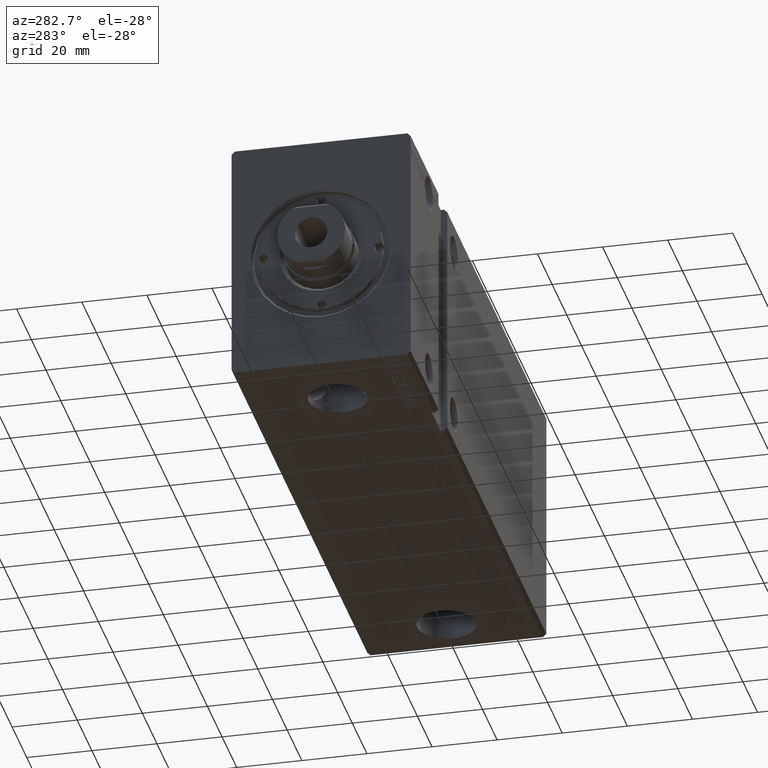
[diagram: clean part render]
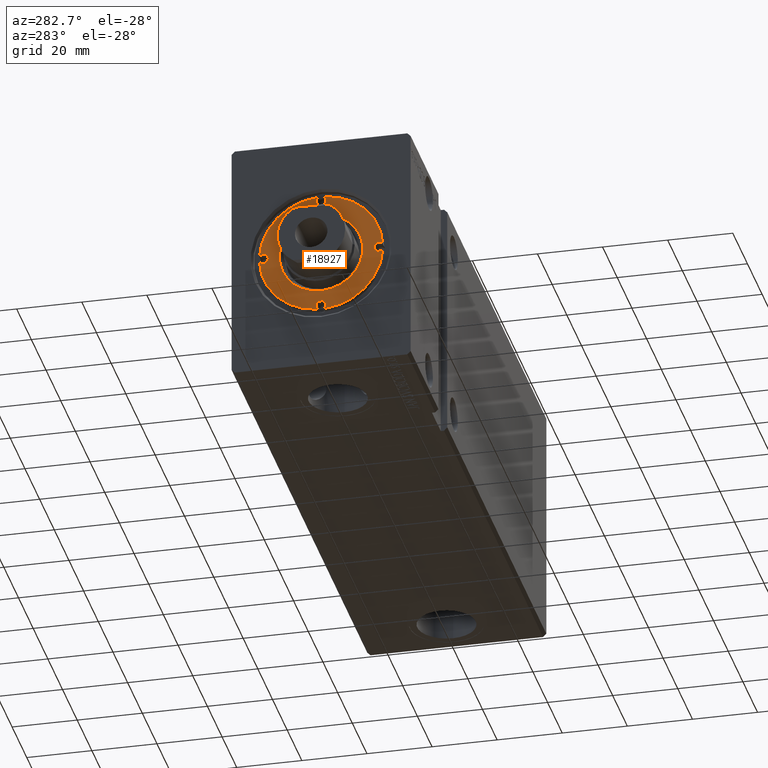
[diagram: same view with one face highlighted and labeled with its STEP entity id]
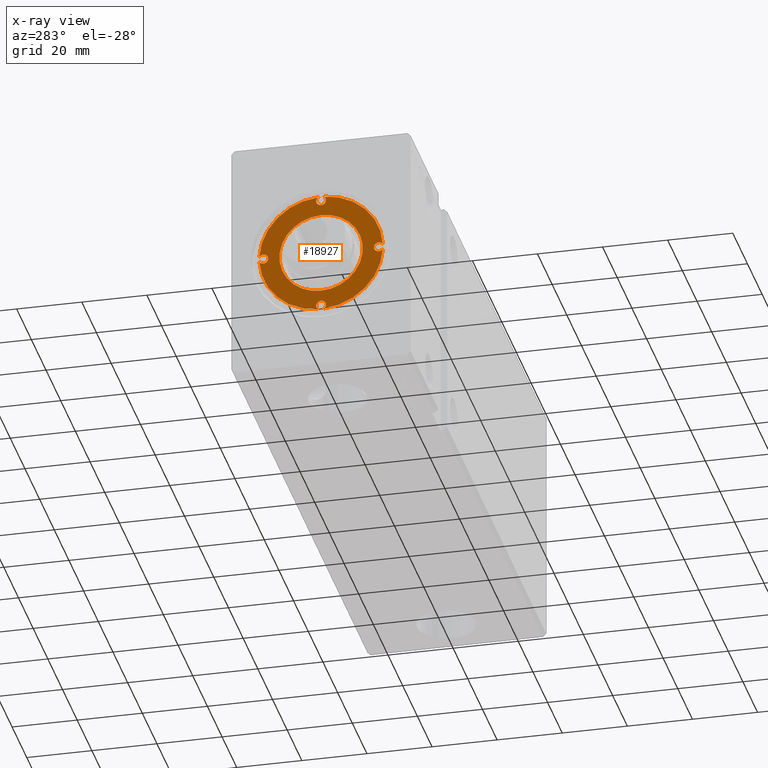
[diagram: x-ray of the same camera — body ghosted, the highlighted face saturated]
A machine part, auxiliary view. The second image highlights one B-rep face of the part: STEP entity #18927.
The next image is the same camera in x-ray: the body ghosted, the highlighted face saturated — about 0% of this face is hidden behind the body in this view.
In plain terms, the highlighted planar face has unit normal (-1, 0, 0).
Its self-contained STEP definition (entity closure, byte-faithful):
#139 = CARTESIAN_POINT ( 'NONE',  ( 0.000000000000000000, 0.000000000000000000, 11.79999999999999893 ) ) ;
#310 = DIRECTION ( 'NONE',  ( -0.000000000000000000, -0.000000000000000000, 1.000000000000000000 ) ) ;
#656 = VERTEX_POINT ( 'NONE', #29098 ) ;
#686 = AXIS2_PLACEMENT_3D ( 'NONE', #1512, #8278, #20448 ) ;
#737 = CARTESIAN_POINT ( 'NONE',  ( -12.79999999999997407, 1.567547902908609029E-15, 11.79999999999999893 ) ) ;
#1171 = DIRECTION ( 'NONE',  ( 1.000000000000000000, 0.000000000000000000, 0.000000000000000000 ) ) ;
#1462 = CARTESIAN_POINT ( 'NONE',  ( 12.79999999999997407, 0.000000000000000000, 11.79999999999999893 ) ) ;
#1512 = CARTESIAN_POINT ( 'NONE',  ( 0.000000000000000000, -17.75000000000000000, 11.79999999999999893 ) ) ;
#1538 = DIRECTION ( 'NONE',  ( -0.000000000000000000, -0.000000000000000000, 1.000000000000000000 ) ) ;
#1889 = CIRCLE ( 'NONE', #12114, 19.00000000000000000 ) ;
#2023 = CIRCLE ( 'NONE', #24326, 1.499999999999996891 ) ;
#2183 = EDGE_CURVE ( 'NONE', #5565, #26791, #22205, .T. ) ;
#2620 = CARTESIAN_POINT ( 'NONE',  ( 0.8576365450261712597, 18.98063380281688950, 11.79999999999999893 ) ) ;
#2948 = CARTESIAN_POINT ( 'NONE',  ( 1.499999999999996891, 17.75000000000000000, 11.79999999999999893 ) ) ;
#3190 = AXIS2_PLACEMENT_3D ( 'NONE', #22474, #27878, #37063 ) ;
#3583 = EDGE_CURVE ( 'NONE', #19759, #17506, #31202, .T. ) ;
#3900 = CARTESIAN_POINT ( 'NONE',  ( 18.98063380281688950, 0.8576365450261742573, 11.79999999999999893 ) ) ;
#3997 = AXIS2_PLACEMENT_3D ( 'NONE', #19100, #1538, #25509 ) ;
#5565 = VERTEX_POINT ( 'NONE', #35166 ) ;
#5742 = EDGE_LOOP ( 'NONE', ( #16484, #35174 ) ) ;
#7233 = VERTEX_POINT ( 'NONE', #17666 ) ;
#7633 = AXIS2_PLACEMENT_3D ( 'NONE', #10937, #23124, #11531 ) ;
#7646 = EDGE_CURVE ( 'NONE', #13435, #13924, #20393, .T. ) ;
#7686 = CIRCLE ( 'NONE', #21694, 19.00000000000000000 ) ;
#7791 = EDGE_CURVE ( 'NONE', #31074, #29948, #26826, .T. ) ;
#7796 = ORIENTED_EDGE ( 'NONE', *, *, #27765, .T. ) ;
#7840 = AXIS2_PLACEMENT_3D ( 'NONE', #23313, #22908, #13725 ) ;
#7844 = AXIS2_PLACEMENT_3D ( 'NONE', #26734, #29739, #38543 ) ;
#8071 = CIRCLE ( 'NONE', #15714, 1.499999999999996891 ) ;
#8278 = DIRECTION ( 'NONE',  ( -0.000000000000000000, -0.000000000000000000, 1.000000000000000000 ) ) ;
#8471 = DIRECTION ( 'NONE',  ( -0.000000000000000000, -0.000000000000000000, 1.000000000000000000 ) ) ;
#8588 = CIRCLE ( 'NONE', #19411, 19.00000000000000000 ) ;
#9320 = DIRECTION ( 'NONE',  ( 1.000000000000000000, 0.000000000000000000, 0.000000000000000000 ) ) ;
#9395 = CARTESIAN_POINT ( 'NONE',  ( 0.000000000000000000, 17.75000000000000000, 11.79999999999999893 ) ) ;
#9878 = DIRECTION ( 'NONE',  ( 0.000000000000000000, 0.000000000000000000, 1.000000000000000000 ) ) ;
#10312 = ORIENTED_EDGE ( 'NONE', *, *, #17511, .F. ) ;
#10734 = CARTESIAN_POINT ( 'NONE',  ( 0.000000000000000000, 17.75000000000000000, 11.79999999999999893 ) ) ;
#10786 = ORIENTED_EDGE ( 'NONE', *, *, #11900, .F. ) ;
#10830 = CARTESIAN_POINT ( 'NONE',  ( 0.000000000000000000, 0.000000000000000000, 11.79999999999999893 ) ) ;
#10901 = EDGE_CURVE ( 'NONE', #29948, #16550, #2023, .T. ) ;
#10937 = CARTESIAN_POINT ( 'NONE',  ( 17.75000000000000000, 0.000000000000000000, 11.79999999999999893 ) ) ;
#11118 = VERTEX_POINT ( 'NONE', #19823 ) ;
#11137 = EDGE_CURVE ( 'NONE', #12128, #35981, #25639, .T. ) ;
#11398 = DIRECTION ( 'NONE',  ( 1.000000000000000000, 0.000000000000000000, 0.000000000000000000 ) ) ;
#11531 = DIRECTION ( 'NONE',  ( 1.000000000000000000, 0.000000000000000000, 0.000000000000000000 ) ) ;
#11744 = DIRECTION ( 'NONE',  ( 1.000000000000000000, 0.000000000000000000, 0.000000000000000000 ) ) ;
#11900 = EDGE_CURVE ( 'NONE', #7233, #19759, #15419, .T. ) ;
#12114 = AXIS2_PLACEMENT_3D ( 'NONE', #139, #12320, #9320 ) ;
#12128 = VERTEX_POINT ( 'NONE', #737 ) ;
#12320 = DIRECTION ( 'NONE',  ( 0.000000000000000000, 0.000000000000000000, 1.000000000000000000 ) ) ;
#12955 = CARTESIAN_POINT ( 'NONE',  ( 0.000000000000000000, -17.75000000000000000, 11.79999999999999893 ) ) ;
#13074 = DIRECTION ( 'NONE',  ( 1.000000000000000000, 0.000000000000000000, 0.000000000000000000 ) ) ;
#13250 = DIRECTION ( 'NONE',  ( 1.000000000000000000, 0.000000000000000000, 0.000000000000000000 ) ) ;
#13435 = VERTEX_POINT ( 'NONE', #3900 ) ;
#13718 = CARTESIAN_POINT ( 'NONE',  ( -1.499999999999996891, -17.75000000000000000, 11.79999999999999893 ) ) ;
#13725 = DIRECTION ( 'NONE',  ( 1.000000000000000000, 0.000000000000000000, -0.000000000000000000 ) ) ;
#13913 = AXIS2_PLACEMENT_3D ( 'NONE', #36409, #8471, #20826 ) ;
#13924 = VERTEX_POINT ( 'NONE', #2620 ) ;
#14776 = EDGE_CURVE ( 'NONE', #35981, #12128, #23797, .T. ) ;
#15419 = CIRCLE ( 'NONE', #16063, 1.499999999999996891 ) ;
#15714 = AXIS2_PLACEMENT_3D ( 'NONE', #28074, #37263, #28661 ) ;
#15859 = ORIENTED_EDGE ( 'NONE', *, *, #24456, .T. ) ;
#16063 = AXIS2_PLACEMENT_3D ( 'NONE', #10734, #32132, #22917 ) ;
#16484 = ORIENTED_EDGE ( 'NONE', *, *, #14776, .T. ) ;
#16550 = VERTEX_POINT ( 'NONE', #33543 ) ;
#17506 = VERTEX_POINT ( 'NONE', #2948 ) ;
#17511 = EDGE_CURVE ( 'NONE', #18072, #31074, #38431, .T. ) ;
#17666 = CARTESIAN_POINT ( 'NONE',  ( -0.8576365450261700385, 18.98063380281688950, 11.79999999999999893 ) ) ;
#17802 = ORIENTED_EDGE ( 'NONE', *, *, #33471, .T. ) ;
#18072 = VERTEX_POINT ( 'NONE', #30742 ) ;
#18556 = AXIS2_PLACEMENT_3D ( 'NONE', #19071, #310, #28282 ) ;
#18927 = ADVANCED_FACE ( 'NONE', ( #38891, #19715 ), #26317, .T. ) ;
#19071 = CARTESIAN_POINT ( 'NONE',  ( 17.75000000000000000, 0.000000000000000000, 11.79999999999999893 ) ) ;
#19100 = CARTESIAN_POINT ( 'NONE',  ( 0.000000000000000000, -17.75000000000000000, 11.79999999999999893 ) ) ;
#19411 = AXIS2_PLACEMENT_3D ( 'NONE', #28056, #9878, #13074 ) ;
#19715 = FACE_BOUND ( 'NONE', #5742, .T. ) ;
#19759 = VERTEX_POINT ( 'NONE', #35505 ) ;
#19823 = CARTESIAN_POINT ( 'NONE',  ( 16.25000000000000000, 1.836970198721027222E-16, 11.79999999999999893 ) ) ;
#20393 = CIRCLE ( 'NONE', #3190, 19.00000000000000000 ) ;
#20448 = DIRECTION ( 'NONE',  ( 1.000000000000000000, 0.000000000000000000, 0.000000000000000000 ) ) ;
#20826 = DIRECTION ( 'NONE',  ( 1.000000000000000000, 0.000000000000000000, 0.000000000000000000 ) ) ;
#21362 = CARTESIAN_POINT ( 'NONE',  ( -17.75000000000000000, 0.000000000000000000, 11.79999999999999893 ) ) ;
#21694 = AXIS2_PLACEMENT_3D ( 'NONE', #35921, #30319, #11744 ) ;
#21985 = DIRECTION ( 'NONE',  ( -0.000000000000000000, -0.000000000000000000, 1.000000000000000000 ) ) ;
#22205 = CIRCLE ( 'NONE', #13913, 1.499999999999997780 ) ;
#22474 = CARTESIAN_POINT ( 'NONE',  ( 0.000000000000000000, 0.000000000000000000, 11.79999999999999893 ) ) ;
#22581 = AXIS2_PLACEMENT_3D ( 'NONE', #21362, #38773, #11398 ) ;
#22635 = DIRECTION ( 'NONE',  ( -0.000000000000000000, -0.000000000000000000, -1.000000000000000000 ) ) ;
#22873 = EDGE_CURVE ( 'NONE', #17506, #13924, #8071, .T. ) ;
#22908 = DIRECTION ( 'NONE',  ( 0.000000000000000000, 0.000000000000000000, 1.000000000000000000 ) ) ;
#22917 = DIRECTION ( 'NONE',  ( 1.000000000000000000, 0.000000000000000000, 0.000000000000000000 ) ) ;
#23124 = DIRECTION ( 'NONE',  ( -0.000000000000000000, -0.000000000000000000, 1.000000000000000000 ) ) ;
#23313 = CARTESIAN_POINT ( 'NONE',  ( 0.000000000000000000, 0.000000000000000000, 11.79999999999999893 ) ) ;
#23448 = ORIENTED_EDGE ( 'NONE', *, *, #7646, .T. ) ;
#23797 = CIRCLE ( 'NONE', #7844, 12.79999999999997407 ) ;
#24301 = VERTEX_POINT ( 'NONE', #28359 ) ;
#24326 = AXIS2_PLACEMENT_3D ( 'NONE', #12955, #37328, #1171 ) ;
#24456 = EDGE_CURVE ( 'NONE', #18072, #24301, #8588, .T. ) ;
#25509 = DIRECTION ( 'NONE',  ( 1.000000000000000000, 0.000000000000000000, 0.000000000000000000 ) ) ;
#25639 = CIRCLE ( 'NONE', #39006, 12.79999999999997407 ) ;
#25812 = EDGE_CURVE ( 'NONE', #656, #5565, #38534, .T. ) ;
#26257 = ORIENTED_EDGE ( 'NONE', *, *, #10901, .F. ) ;
#26317 = PLANE ( 'NONE',  #7840 ) ;
#26697 = EDGE_CURVE ( 'NONE', #13435, #11118, #39501, .T. ) ;
#26701 = AXIS2_PLACEMENT_3D ( 'NONE', #9395, #21985, #28181 ) ;
#26734 = CARTESIAN_POINT ( 'NONE',  ( 0.000000000000000000, 0.000000000000000000, 11.79999999999999893 ) ) ;
#26791 = VERTEX_POINT ( 'NONE', #28251 ) ;
#26826 = CIRCLE ( 'NONE', #686, 1.499999999999996891 ) ;
#27765 = EDGE_CURVE ( 'NONE', #7233, #26791, #1889, .T. ) ;
#27878 = DIRECTION ( 'NONE',  ( 0.000000000000000000, 0.000000000000000000, 1.000000000000000000 ) ) ;
#28056 = CARTESIAN_POINT ( 'NONE',  ( 0.000000000000000000, 0.000000000000000000, 11.79999999999999893 ) ) ;
#28074 = CARTESIAN_POINT ( 'NONE',  ( 0.000000000000000000, 17.75000000000000000, 11.79999999999999893 ) ) ;
#28181 = DIRECTION ( 'NONE',  ( 1.000000000000000000, 0.000000000000000000, 0.000000000000000000 ) ) ;
#28251 = CARTESIAN_POINT ( 'NONE',  ( -18.98063380281688950, 0.8576365450261722589, 11.79999999999999893 ) ) ;
#28282 = DIRECTION ( 'NONE',  ( 1.000000000000000000, 0.000000000000000000, 0.000000000000000000 ) ) ;
#28359 = CARTESIAN_POINT ( 'NONE',  ( 18.98063380281690016, -0.8576365450261579371, 11.79999999999999893 ) ) ;
#28368 = ORIENTED_EDGE ( 'NONE', *, *, #35531, .F. ) ;
#28661 = DIRECTION ( 'NONE',  ( 1.000000000000000000, 0.000000000000000000, 0.000000000000000000 ) ) ;
#29098 = CARTESIAN_POINT ( 'NONE',  ( -18.98063380281689305, -0.8576365450261700385, 11.79999999999999893 ) ) ;
#29602 = ORIENTED_EDGE ( 'NONE', *, *, #2183, .F. ) ;
#29739 = DIRECTION ( 'NONE',  ( -0.000000000000000000, -0.000000000000000000, -1.000000000000000000 ) ) ;
#29851 = CARTESIAN_POINT ( 'NONE',  ( 1.499999999999996891, -17.75000000000000000, 11.79999999999999893 ) ) ;
#29948 = VERTEX_POINT ( 'NONE', #13718 ) ;
#30319 = DIRECTION ( 'NONE',  ( 0.000000000000000000, 0.000000000000000000, 1.000000000000000000 ) ) ;
#30742 = CARTESIAN_POINT ( 'NONE',  ( 0.8576365450261690393, -18.98063380281689305, 11.79999999999999893 ) ) ;
#31074 = VERTEX_POINT ( 'NONE', #29851 ) ;
#31202 = CIRCLE ( 'NONE', #26701, 1.499999999999996891 ) ;
#32132 = DIRECTION ( 'NONE',  ( -0.000000000000000000, -0.000000000000000000, 1.000000000000000000 ) ) ;
#32992 = ORIENTED_EDGE ( 'NONE', *, *, #22873, .F. ) ;
#33471 = EDGE_CURVE ( 'NONE', #656, #16550, #7686, .T. ) ;
#33543 = CARTESIAN_POINT ( 'NONE',  ( -0.8576365450261641543, -18.98063380281689305, 11.79999999999999893 ) ) ;
#33865 = ORIENTED_EDGE ( 'NONE', *, *, #7791, .F. ) ;
#33887 = CIRCLE ( 'NONE', #18556, 1.499999999999997780 ) ;
#34002 = ORIENTED_EDGE ( 'NONE', *, *, #26697, .F. ) ;
#34596 = ORIENTED_EDGE ( 'NONE', *, *, #25812, .F. ) ;
#35166 = CARTESIAN_POINT ( 'NONE',  ( -16.25000000000000000, 0.000000000000000000, 11.79999999999999893 ) ) ;
#35174 = ORIENTED_EDGE ( 'NONE', *, *, #11137, .T. ) ;
#35505 = CARTESIAN_POINT ( 'NONE',  ( -1.499999999999996891, 17.75000000000000000, 11.79999999999999893 ) ) ;
#35531 = EDGE_CURVE ( 'NONE', #11118, #24301, #33887, .T. ) ;
#35577 = EDGE_LOOP ( 'NONE', ( #34596, #17802, #26257, #33865, #10312, #15859, #28368, #34002, #23448, #32992, #36924, #10786, #7796, #29602 ) ) ;
#35921 = CARTESIAN_POINT ( 'NONE',  ( 0.000000000000000000, 0.000000000000000000, 11.79999999999999893 ) ) ;
#35981 = VERTEX_POINT ( 'NONE', #1462 ) ;
#36409 = CARTESIAN_POINT ( 'NONE',  ( -17.75000000000000000, 0.000000000000000000, 11.79999999999999893 ) ) ;
#36924 = ORIENTED_EDGE ( 'NONE', *, *, #3583, .F. ) ;
#37063 = DIRECTION ( 'NONE',  ( 1.000000000000000000, 0.000000000000000000, 0.000000000000000000 ) ) ;
#37263 = DIRECTION ( 'NONE',  ( -0.000000000000000000, -0.000000000000000000, 1.000000000000000000 ) ) ;
#37328 = DIRECTION ( 'NONE',  ( -0.000000000000000000, -0.000000000000000000, 1.000000000000000000 ) ) ;
#38431 = CIRCLE ( 'NONE', #3997, 1.499999999999996891 ) ;
#38534 = CIRCLE ( 'NONE', #22581, 1.499999999999997780 ) ;
#38543 = DIRECTION ( 'NONE',  ( 1.000000000000000000, 0.000000000000000000, 0.000000000000000000 ) ) ;
#38773 = DIRECTION ( 'NONE',  ( -0.000000000000000000, -0.000000000000000000, 1.000000000000000000 ) ) ;
#38891 = FACE_OUTER_BOUND ( 'NONE', #35577, .T. ) ;
#39006 = AXIS2_PLACEMENT_3D ( 'NONE', #10830, #22635, #13250 ) ;
#39501 = CIRCLE ( 'NONE', #7633, 1.499999999999997780 ) ;